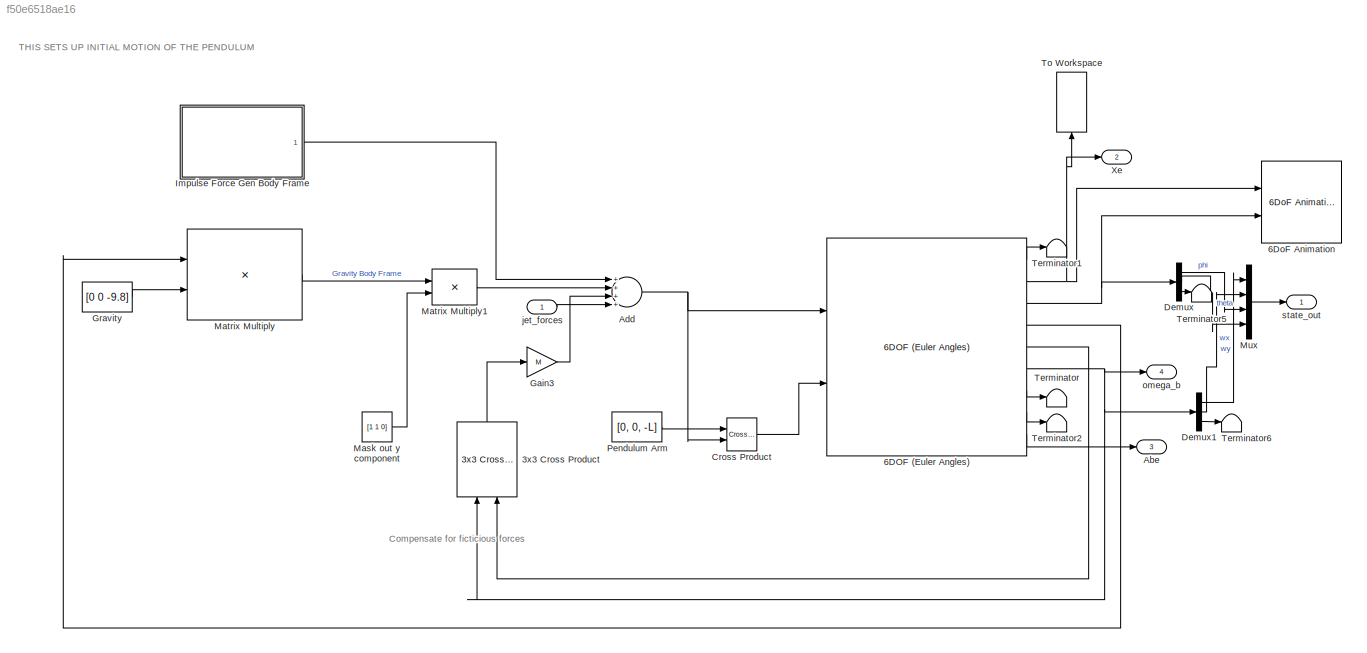
MODEL slx_f50e6518ae16
KIND model
CONFIG AbsTol = auto
CONFIG EnableMultiTasking = off
CONFIG FixedStep = auto
CONFIG MaxStep = auto
CONFIG MinStep = auto
CONFIG RelTol = 1e-9
CONFIG SampleTimeConstraint = Unconstrained
CONFIG Solver = VariableStepAuto
CONFIG SolverName = VariableStepAuto
CONFIG StartTime = 0.0
CONFIG StopTime = 20
BLOCK [Reference] 3x3 Cross Product  REF=sharedutil/3x3 Cross Product
  Ports = [2, 1]
  SourceBlock = sharedutil/3x3 Cross Product
  SourceProductBaseCode = AE
  SourceProductName = Aerospace Blockset
  SourceType = CrossProduct
BLOCK [Reference] 6DOF (Euler Angles)  REF=shared6dof/6DOF (Euler Angles)
  Ports = [2, 9]
  SourceBlock = shared6dof/6DOF (Euler Angles)
  SourceProductBaseCode = AE
  SourceProductName = Aerospace Blockset
  SourceType = 6DOF EoM (Body Axis)
BLOCK [Reference] 6DoF Animation  REF=aerolibanim/6DoF Animation
  Commented = on
  Ports = [2]
  SourceBlock = aerolibanim/6DoF Animation
  SourceProductBaseCode = AE
  SourceProductName = Aerospace Blockset
  SourceType = 6DoF_Animation
BLOCK [Outport] Abe
  IconDisplay = Port number
  Port = 3
BLOCK [Sum] Add
  InputSameDT = off
  Inputs = ++++
  OutDataTypeStr = Inherit: Inherit via internal rule
  Ports = [4, 1]
  SaturateOnIntegerOverflow = off
BLOCK [Reference] Cross Product  REF=vrlib/Utilities/Cross Product
  Ports = [2, 1]
  SourceBlock = vrlib/Utilities/Cross Product
  SourceProductBaseCode = VR
  SourceProductName = Simulink 3D Animation
  SourceType = Cross Product
BLOCK [Demux] Demux
  DisplayOption = bar
  Outputs = 3
  Ports = [1, 3]
BLOCK [Demux] Demux1
  DisplayOption = bar
  Outputs = 3
  Ports = [1, 3]
BLOCK [Gain] Gain3
  Gain = M
  OutDataTypeStr = Inherit: Inherit via internal rule
  ParamDataTypeStr = Inherit: Inherit via internal rule
  SaturateOnIntegerOverflow = off
BLOCK [Constant] Gravity
  Value = [0 0 -9.8]
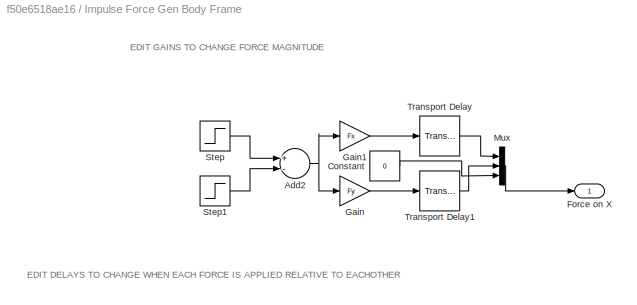
BLOCK [SubSystem] Impulse Force Gen Body Frame
  Ports = [0, 1]
  RequestExecContextInheritance = off
BLOCK [Sum] Impulse Force Gen Body Frame/Add2
  InputSameDT = off
  Inputs = +-
  OutDataTypeStr = Inherit: Inherit via internal rule
  Ports = [2, 1]
  SaturateOnIntegerOverflow = off
BLOCK [Constant] Impulse Force Gen Body Frame/Constant
  Value = 0
BLOCK [Outport] Impulse Force Gen Body Frame/Force on X
  IconDisplay = Port number
BLOCK [Gain] Impulse Force Gen Body Frame/Gain
  Gain = Fy
  OutDataTypeStr = Inherit: Inherit via internal rule
  ParamDataTypeStr = Inherit: Inherit via internal rule
  SaturateOnIntegerOverflow = off
BLOCK [Gain] Impulse Force Gen Body Frame/Gain1
  Gain = Fx
  OutDataTypeStr = Inherit: Inherit via internal rule
  ParamDataTypeStr = Inherit: Inherit via internal rule
  SaturateOnIntegerOverflow = off
BLOCK [Mux] Impulse Force Gen Body Frame/Mux
  DisplayOption = bar
  Inputs = 3
  Ports = [3, 1]
BLOCK [Step] Impulse Force Gen Body Frame/Step
  SampleTime = 0
  Time = 0
BLOCK [Step] Impulse Force Gen Body Frame/Step1
  SampleTime = 0
BLOCK [TransportDelay] Impulse Force Gen Body Frame/Transport Delay
  DelayTime = Delayx
  Ports = [1, 1]
BLOCK [TransportDelay] Impulse Force Gen Body Frame/Transport Delay1
  DelayTime = Delayy
  Ports = [1, 1]
BLOCK [Constant] Mask out y component
  Value = [1 1 0]
BLOCK [Product] Matrix Multiply
  InputSameDT = off
  Multiplication = Matrix(*)
  OutDataTypeStr = Inherit: Inherit via internal rule
  Ports = [2, 1]
  RndMeth = Floor
  SaturateOnIntegerOverflow = off
BLOCK [Product] Matrix Multiply1
  InputSameDT = off
  OutDataTypeStr = Inherit: Inherit via internal rule
  Ports = [2, 1]
  RndMeth = Floor
  SaturateOnIntegerOverflow = off
BLOCK [Mux] Mux
  DisplayOption = bar
  Ports = [4, 1]
BLOCK [Constant] Pendulum Arm
  Value = [0, 0, -L]
BLOCK [Terminator] Terminator
BLOCK [Terminator] Terminator1
BLOCK [Terminator] Terminator2
BLOCK [Terminator] Terminator5
BLOCK [Terminator] Terminator6
BLOCK [ToWorkspace] To Workspace
  FixptAsFi = on
  MaxDataPoints = inf
  Ports = [1]
  SampleTime = -1
  Save2DSignal = 3-D array (concatenate along third dimension)
  SaveFormat = Timeseries
  VariableName = Xe
BLOCK [Outport] Xe
  IconDisplay = Port number
  Port = 2
BLOCK [Inport] jet_forces
  IconDisplay = Port number
  PortDimensions = 3
BLOCK [Outport] omega_b
  IconDisplay = Port number
  Port = 4
BLOCK [Outport] state_out
  IconDisplay = Port number
ANNOTATION (root): Compensate for ficticious forces
ANNOTATION (root): THIS SETS UP INITIAL MOTION OF THE PENDULUM
ANNOTATION Impulse Force Gen Body Frame: EDIT DELAYS TO CHANGE WHEN EACH FORCE IS APPLIED RELATIVE TO EACHOTHER
ANNOTATION Impulse Force Gen Body Frame: EDIT GAINS TO CHANGE FORCE MAGNITUDE
LINE 3x3 Cross Product:1 -> Gain3:1
LINE 6DOF (Euler Angles):1 -> Terminator1:1
NET 6DOF (Euler Angles):2 -> 6DoF Animation:1, To Workspace:1, Xe:1
NET 6DOF (Euler Angles):3 -> 6DoF Animation:2, Demux:1
LINE 6DOF (Euler Angles):4 -> Matrix Multiply:1
LINE 6DOF (Euler Angles):5 -> 3x3 Cross Product:2
NET 6DOF (Euler Angles):6 -> 3x3 Cross Product:1, Demux1:1, omega_b:1
LINE 6DOF (Euler Angles):7 -> Terminator:1
LINE 6DOF (Euler Angles):8 -> Terminator2:1
LINE 6DOF (Euler Angles):9 -> Abe:1
NET Add:1 -> 6DOF (Euler Angles):1, Cross Product:2
LINE Cross Product:1 -> 6DOF (Euler Angles):2
LINE Demux1:1 -> Mux:1
LINE Demux1:2 -> Mux:2
LINE Demux1:3 -> Terminator6:1
LINE Demux:1 -> Mux:3
LINE Demux:2 -> Mux:4
LINE Demux:3 -> Terminator5:1
LINE Gain3:1 -> Add:3
LINE Gravity:1 -> Matrix Multiply:2
NET Impulse Force Gen Body Frame/Add2:1 -> Impulse Force Gen Body Frame/Gain1:1, Impulse Force Gen Body Frame/Gain:1
LINE Impulse Force Gen Body Frame/Constant:1 -> Impulse Force Gen Body Frame/Mux:3
LINE Impulse Force Gen Body Frame/Gain1:1 -> Impulse Force Gen Body Frame/Transport Delay:1
LINE Impulse Force Gen Body Frame/Gain:1 -> Impulse Force Gen Body Frame/Transport Delay1:1
LINE Impulse Force Gen Body Frame/Mux:1 -> Impulse Force Gen Body Frame/Force on X:1
LINE Impulse Force Gen Body Frame/Step1:1 -> Impulse Force Gen Body Frame/Add2:2
LINE Impulse Force Gen Body Frame/Step:1 -> Impulse Force Gen Body Frame/Add2:1
LINE Impulse Force Gen Body Frame/Transport Delay1:1 -> Impulse Force Gen Body Frame/Mux:2
LINE Impulse Force Gen Body Frame/Transport Delay:1 -> Impulse Force Gen Body Frame/Mux:1
LINE Impulse Force Gen Body Frame:1 -> Add:1
LINE Mask out y component:1 -> Matrix Multiply1:2
LINE Matrix Multiply1:1 -> Add:2
LINE Matrix Multiply:1 -> Matrix Multiply1:1
LINE Mux:1 -> state_out:1
LINE Pendulum Arm:1 -> Cross Product:1
LINE jet_forces:1 -> Add:4
note: NET lines group one-source signal fan-out (src -> all destinations, sorted); 1:1 wires keep LINE
